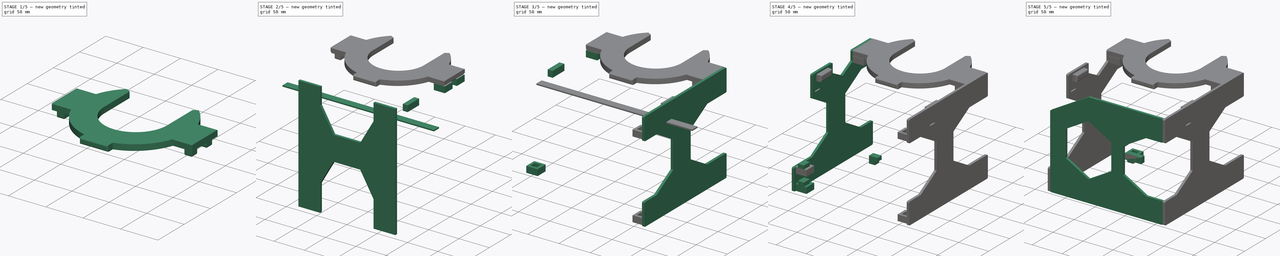
[diagram: build sequence overview — one tinted view per stage of 5, left to right]
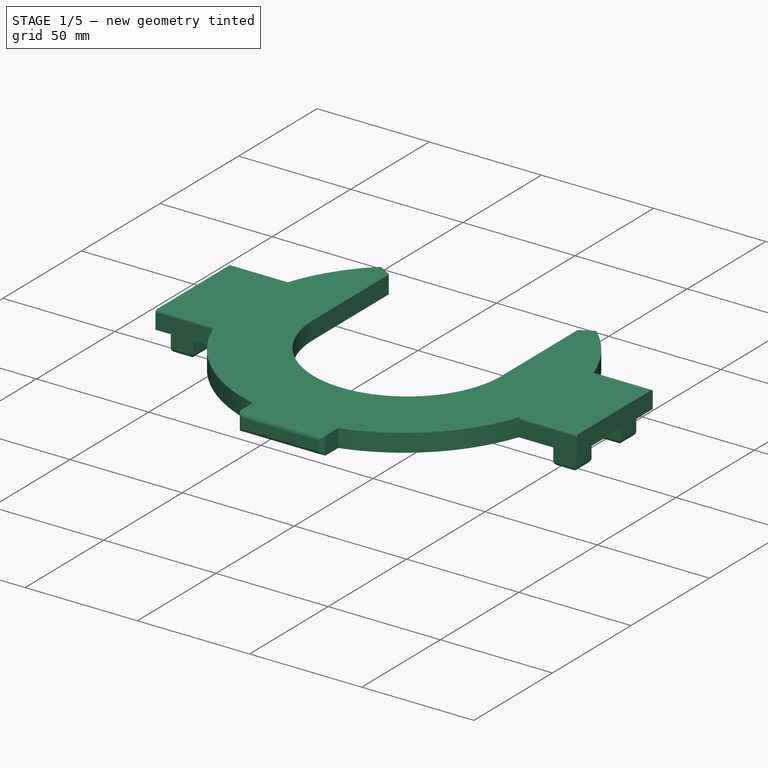
[diagram: stage 1 of 5 — iso view after this stage's code; geometry added in this stage tinted green]
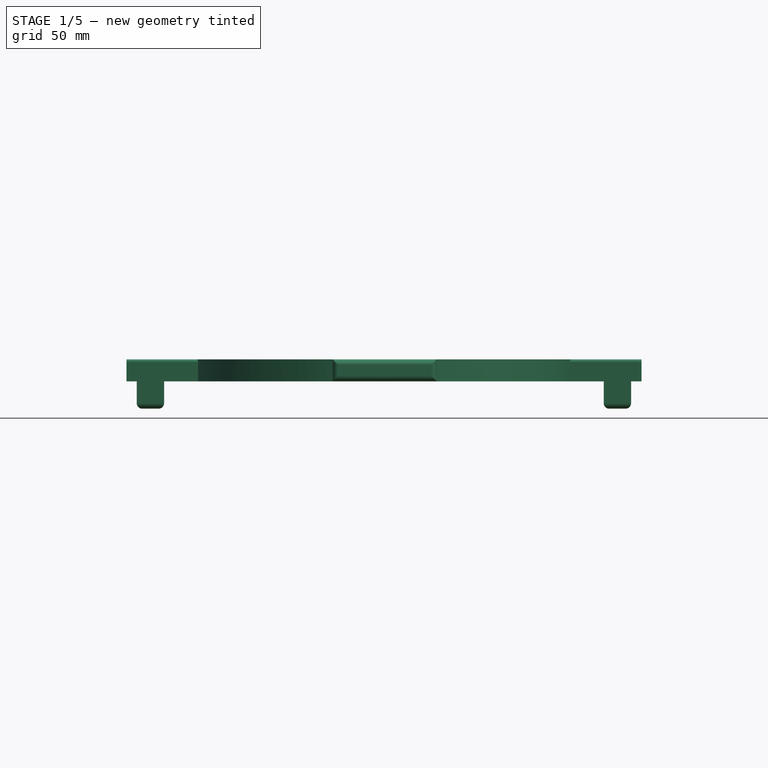
[diagram: stage 1 of 5 — front view after this stage's code; geometry added in this stage tinted green]
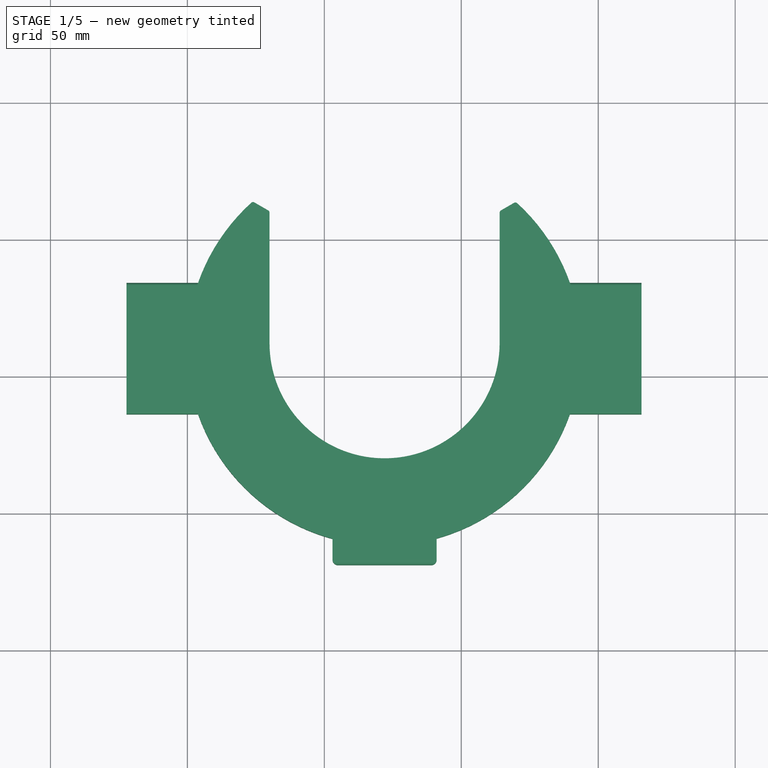
[diagram: stage 1 of 5 — top view after this stage's code; geometry added in this stage tinted green]
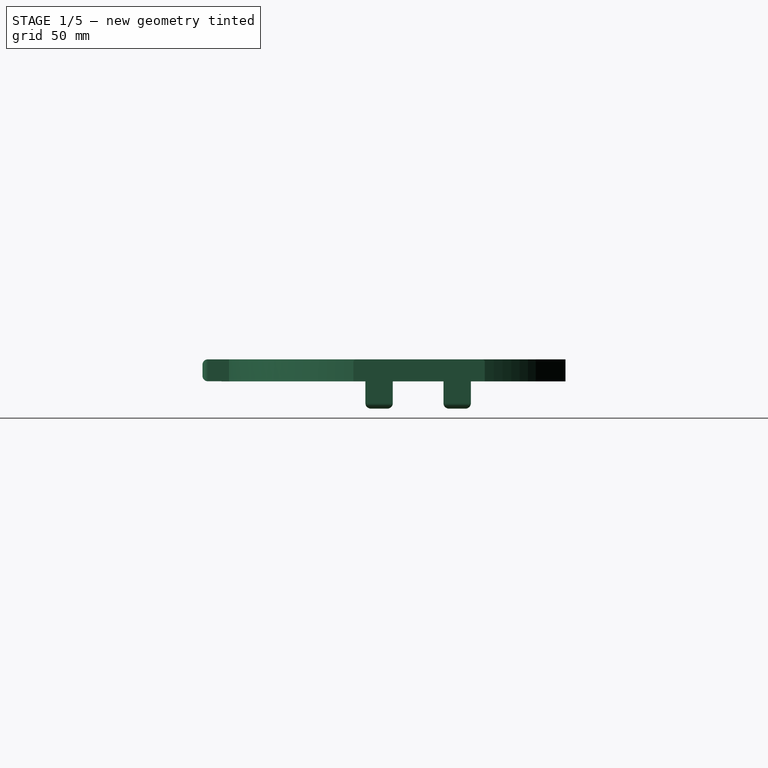
[diagram: stage 1 of 5 — right view after this stage's code; geometry added in this stage tinted green]
FCSTD DOCUMENT  (FreeCAD 0.21R33771 (Git))
Label: reactor-stand-1.0
License: All rights reserved
LicenseURL: https://en.wikipedia.org/wiki/All_rights_reserved
objects: Part::Feature×44, Part::Box×38, Part::Cut×12, Part::MultiFuse×10, Sketcher::SketchObject×8, PartDesign::Pad×8, Part::Fillet×8, App::Part×6, PartDesign::Body×5, Spreadsheet::Sheet×1, Part::Chamfer×1
note: 142 computed .brp shape members not serialized (recipe doc carries the construction recipe); baked Part::Feature solids carry a one-line shape summary decoded from their .brp

FEATURE [PartDesign::Body] Body002  label="k-base"
  Group = -> [Sketch002,Pad002]
  Origin = -> Origin002
  Placement = pos=(-126.19,90,0) rot=(0,0,1;0rad)
  Tip = -> Pad002
FEATURE [Sketcher::SketchObject] Sketch005
  FullyConstrained = true
  MapMode = 5
  Support = -> [XY_Plane004]
  sketch-geometry (1):
    g0: Circle CenterX=0 CenterY=0 CenterZ=0 NormalX=0 NormalY=0 NormalZ=1 AngleXU=0 Radius=42
  constraints (2):
    c: Coincident(g0,g-1)
    c: Diameter(g0) = 84
FEATURE [Sketcher::SketchObject] Sketch007
  FullyConstrained = true
  MapMode = 5
  Support = -> [XY_Plane004]
  expr: Constraints[19] = Spreadsheet.cSupportDepth / 2
  expr: Constraints[20] = 70
  sketch-geometry (7):
    g0: LineSegment StartX=0 StartY=24 StartZ=0 EndX=60.6218 EndY=59 EndZ=0
    g1: LineSegment StartX=60.6218 StartY=59 StartZ=0 EndX=60.6218 EndY=129 EndZ=0
    g2: LineSegment StartX=60.6218 StartY=129 StartZ=0 EndX=7.1e-15 EndY=164 EndZ=0
    g3: LineSegment StartX=7.1e-15 StartY=164 StartZ=0 EndX=-60.6218 EndY=129 EndZ=0
    g4: LineSegment StartX=-60.6218 StartY=129 StartZ=0 EndX=-60.6218 EndY=59 EndZ=0
    g5: LineSegment StartX=-60.6218 StartY=59 StartZ=0 EndX=0 EndY=24 EndZ=0
    g6: Circle CenterX=0 CenterY=94 CenterZ=0 NormalX=0 NormalY=0 NormalZ=1 AngleXU=0 Radius=70
  constraints (17):
    c: Coincident(g0,g1)
    c: Coincident(g1,g2)
    c: Coincident(g2,g3)
    c: Coincident(g3,g4)
    c: Coincident(g4,g5)
    c: Coincident(g5,g0)
    c: Equal(g0, g1-g5) x5
    c: PointOnObject(g0,g6)
    c: PointOnObject(g1,g6)
    c: PointOnObject(g2,g6)
    c: PointOnObject(g3,g6)
    c: PointOnObject(g4,g6)
    c: PointOnObject(g5,g6)
    c: PointOnObject(g6,g-2)
    c: PointOnObject(g5,g-2)
    c: DistanceY(g-1,g0) = 24
    c: Distance(g1) = 70
FEATURE [Sketcher::SketchObject] Sketch006
  FullyConstrained = true
  MapMode = 5
  Support = -> [XY_Plane004]
  expr: Constraints[8] = Spreadsheet.cInnerDiameter
  sketch-geometry (4):
    g0: LineSegment StartX=42 StartY=100 StartZ=0 EndX=-42 EndY=100 EndZ=0
    g1: LineSegment StartX=-42 StartY=100 StartZ=0 EndX=-42 EndY=0 EndZ=0
    g2: LineSegment StartX=-42 StartY=0 StartZ=0 EndX=42 EndY=0 EndZ=0
    g3: LineSegment StartX=42 StartY=0 StartZ=0 EndX=42 EndY=100 EndZ=0
  constraints (11):
    c: Coincident(g0,g1)
    c: Coincident(g1,g2)
    c: Coincident(g2,g3)
    c: Coincident(g3,g0)
    c: Horizontal(g0)
    c: Horizontal(g2)
    c: Vertical(g1)
    c: Vertical(g3)
    c: DistanceX(g2,g2) = 84
    c: Symmetric(g2,g1,g-1)
    c: DistanceY(g3,g3) = 100
FEATURE [PartDesign::Pad] Pad007
  Direction = (0,0,1)
  Length = 10
  Length2 = 10
  Profile = -> Sketch007
  ReferenceAxis = -> Sketch007 [N_Axis]
  Type = 0
FEATURE [PartDesign::Pad] Pad008
  BaseFeature = -> Pad007
  Direction = (0,0,1)
  Length = 10
  Length2 = 10
  Profile = -> Sketch006
  ReferenceAxis = -> Sketch006 [N_Axis]
  Type = 0
FEATURE [PartDesign::Pad] Pad009
  BaseFeature = -> Pad008
  Direction = (0,0,1)
  Length = 10
  Length2 = 10
  Profile = -> Sketch005
  ReferenceAxis = -> Sketch005 [N_Axis]
  Type = 0
FEATURE [PartDesign::Body] Body004  label="c-cut"
  Group = -> [Sketch005,Sketch006,Sketch007,Pad007,Pad008,Pad009]
  Origin = -> Origin004
  Placement = pos=(-28,162,71) rot=(0,0,1;0rad)
  Tip = -> Pad009
FEATURE [Sketcher::SketchObject] Sketch003
  FullyConstrained = true
  MapMode = 2
  Support = -> [XY_Plane003]
  expr: Constraints[1] = Spreadsheet.cDiameter
  sketch-geometry (1):
    g0: Circle CenterX=0 CenterY=0 CenterZ=0 NormalX=0 NormalY=0 NormalZ=1 AngleXU=0 Radius=72
  constraints (2):
    c: Coincident(g0,g-1)
    c: Diameter(g0) = 144
FEATURE [Sketcher::SketchObject] Sketch004
  FullyConstrained = true
  MapMode = 5
  Support = -> [XY_Plane003]
  expr: Constraints[8] = Spreadsheet.cSupportDepth
  expr: Constraints[9] = Spreadsheet.standWidth
  sketch-geometry (4):
    g0: LineSegment StartX=-94 StartY=-24 StartZ=0 EndX=94 EndY=-24 EndZ=0
    g1: LineSegment StartX=94 StartY=-24 StartZ=0 EndX=94 EndY=24 EndZ=0
    g2: LineSegment StartX=94 StartY=24 StartZ=0 EndX=-94 EndY=24 EndZ=0
    g3: LineSegment StartX=-94 StartY=24 StartZ=0 EndX=-94 EndY=-24 EndZ=0
  constraints (11):
    c: Coincident(g0,g1)
    c: Coincident(g1,g2)
    c: Coincident(g2,g3)
    c: Coincident(g3,g0)
    c: Horizontal(g0)
    c: Horizontal(g2)
    c: Vertical(g1)
    c: Vertical(g3)
    c: DistanceY(g3,g3) = 48
    c: DistanceX(g2,g2) = 188
    c: Symmetric(g2,g0,g-1)
FEATURE [PartDesign::Pad] Pad010
  Direction = (0,0,1)
  Length = 8
  Length2 = 10
  Profile = -> Sketch003
  ReferenceAxis = -> Sketch003 [N_Axis]
  Type = 0
  expr: Length = Spreadsheet.wallThickness * 2
FEATURE [PartDesign::Pad] Pad011
  BaseFeature = -> Pad010
  Direction = (0,0,1)
  Length = 8
  Length2 = 10
  Profile = -> Sketch004
  ReferenceAxis = -> Sketch004 [N_Axis]
  Type = 0
  expr: Length = Spreadsheet.wallThickness * 2
FEATURE [PartDesign::Body] Body003  label="c-base"
  Group = -> [Sketch003,Sketch004,Pad010,Pad011]
  Origin = -> Origin003
  Placement = pos=(-28.21,160.09,71.98) rot=(0,0,1;0rad)
  Tip = -> Pad011
FEATURE [Part::Cut] Cut  label="c-with-cut"
  Base = -> Body003
  Tool = -> Body004
FEATURE [Part::Box] Box028  label="c-tab-1"
  AttacherType = Attacher::AttachEngine3D
  Height = 10
  Length = 10
  Placement = pos=(52,140.5,62) rot=(0,0,1;0rad)
  Width = 10
  expr: Height = Spreadsheet.tabThickness
  expr: Length = Spreadsheet.tabThickness
  expr: Width = Spreadsheet.tabThickness
FEATURE [Part::Box] Box029  label="c-tab-002"
  AttacherType = Attacher::AttachEngine3D
  Height = 10
  Length = 10
  Placement = pos=(-118.5,140.5,62) rot=(0,0,1;0rad)
  Width = 10
  expr: Height = Spreadsheet.tabThickness
  expr: Length = Spreadsheet.tabThickness
  expr: Width = Spreadsheet.tabThickness
FEATURE [Part::Box] Box030  label="c-tab-003"
  AttacherType = Attacher::AttachEngine3D
  Height = 10
  Length = 10
  Placement = pos=(52,169,62) rot=(0,0,1;0rad)
  Width = 10
  expr: Height = Spreadsheet.tabThickness
  expr: Length = Spreadsheet.tabThickness
  expr: Width = Spreadsheet.tabThickness
FEATURE [Part::Box] Box031  label="c-tab-004"
  AttacherType = Attacher::AttachEngine3D
  Height = 10
  Length = 10
  Placement = pos=(-118.5,169,62) rot=(0,0,1;0rad)
  Width = 10
  expr: Height = Spreadsheet.tabThickness
  expr: Length = Spreadsheet.tabThickness
  expr: Width = Spreadsheet.tabThickness
FEATURE [Part::MultiFuse] Fusion008  label="c"
  Shapes = -> [Box028,Box029,Box030,Box031,Cut]
FEATURE [Part::Fillet] Fillet  label="c-smoothed"
  Base = -> Fusion008
  Edges = 24 edges: [Edge4 r=2,Edge7 r=2,Edge20 r=2,Edge21 r=2,Edge27 r=1,Edge32 r=1,Edge35 r=2,Edge37 r=2,Edge39 r=2,Edge40 r=2,Edge51 r=1,Edge60 r=1,Edge73 r=1,Edge76 r=1,Edge91 r=1,Edge94 r=1,Edge99 r=2,Edge101 r=2,Edge103 r=2,Edge104 r=2,Edge107 r=2,Edge109 r=2,Edge111 r=2,Edge112 r=2]
FEATURE [Part::Box] Box037  label="Pump Box Front Tab"
  AttacherType = Attacher::AttachEngine3D
  Height = 8
  Length = 38
  Placement = pos=(-47,81,72) rot=(0,0,1;0rad)
  Width = 10
FEATURE [Part::MultiFuse] Fusion009  label="c with tabs"
  Shapes = -> [Fillet,Box037]
FEATURE [Part::Fillet] Fillet011  label="c-smoothed with tabs"
  Base = -> Fusion009
  Edges = 4 edges r=2: [Edge6,Edge9,Edge28,Edge29]
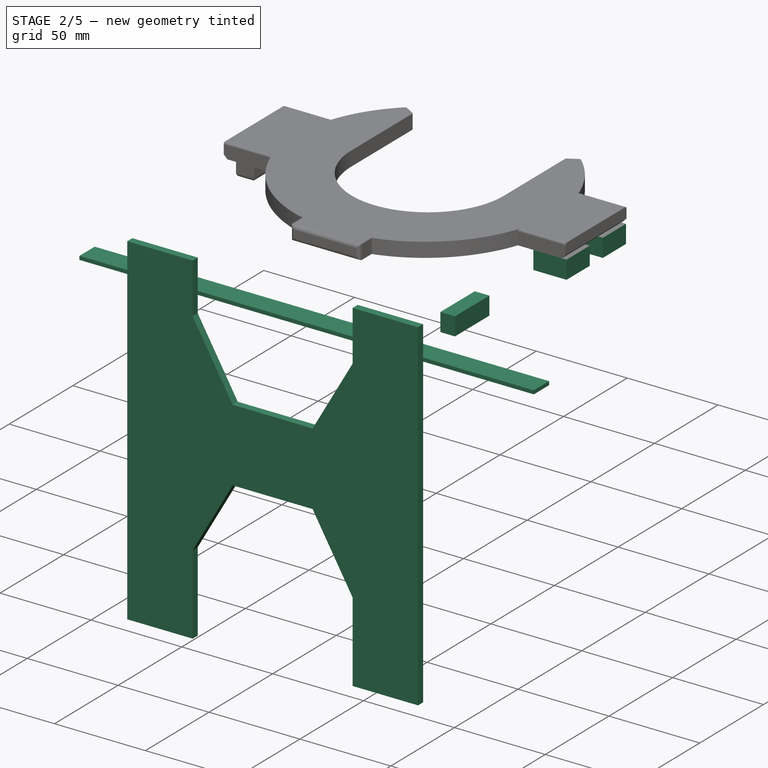
[diagram: stage 2 of 5 — iso view after this stage's code; geometry added in this stage tinted green]
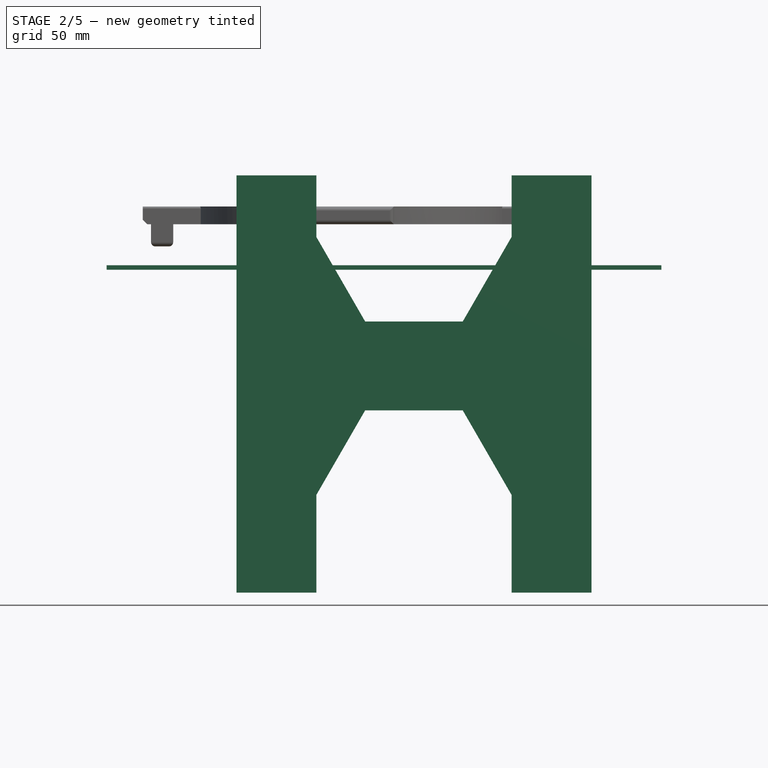
[diagram: stage 2 of 5 — front view after this stage's code; geometry added in this stage tinted green]
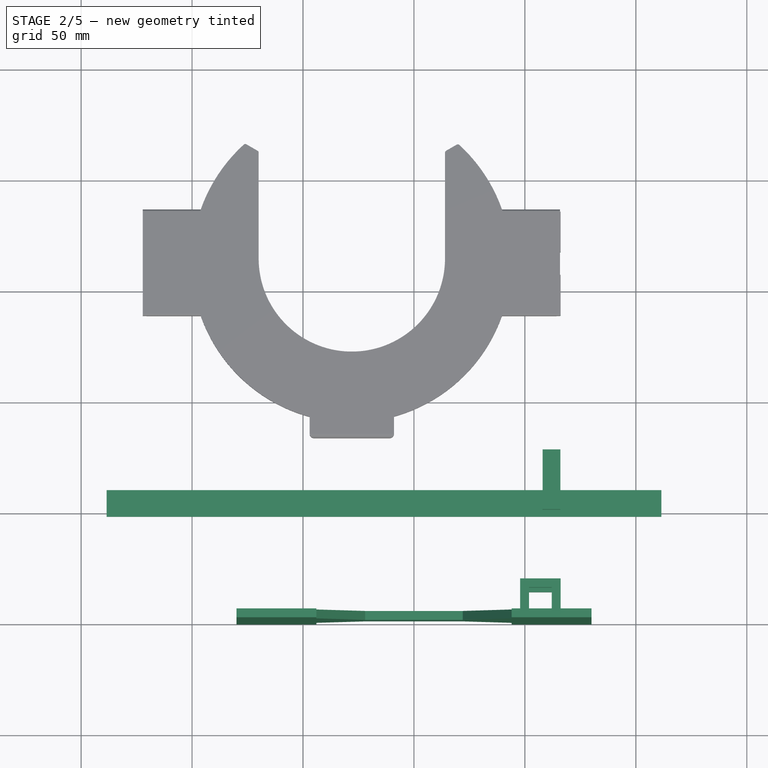
[diagram: stage 2 of 5 — top view after this stage's code; geometry added in this stage tinted green]
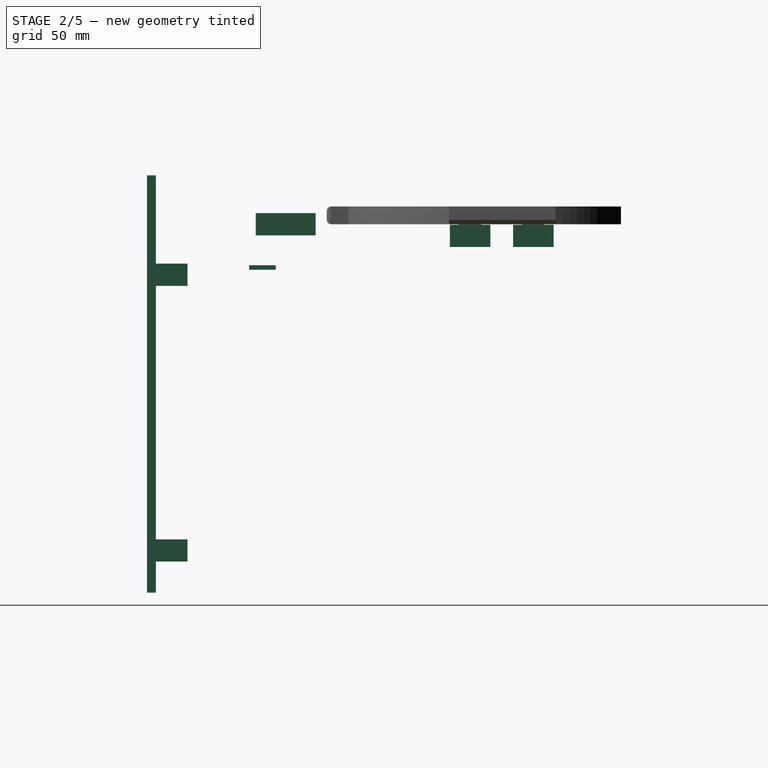
[diagram: stage 2 of 5 — right view after this stage's code; geometry added in this stage tinted green]
FEATURE [Spreadsheet::Sheet] Spreadsheet
  cells = C4='standHeight; D4(standHeight)==160 mm; C5='standWidth; D5(standWidth)==188 mm; C6='standDepth; D6(standDepth)==188 mm; C8='wallthickness; D8(wallThickness)==4 mm; C10='tabThickness; D10(tabThickness)==10 mm; C11='tabBufferSize; D11(tabBufferSize)==0.25 mm; C12='tabHeight; D12(tabHeight)==6 mm; C13='tabSupportHeight; D13(tabSupportHeight)==6 mm; C14='pumpBoxSupportDepth; D14(pumpBoxSupportDepth)==27 mm; C15='pumpBoxSupportWidth; D15(pumpBoxSupportWidth)==8 mm; C16='pumpBoxSupportHeight; D16(pumpBoxSupportHeight)==10 mm; C18='slotThickness; D18(slotThickness)==tabThickness + tabBufferSize + wallThickness * 2; C21='cDiameter; D21(cDiameter)==144 mm; C22='cSupportDepth; D22(cSupportDepth)==48 mm; C23='cInnerDiameter; D23(cInnerDiameter)==84 mm; C25='pumpsBoxSetback
FEATURE [Sketcher::SketchObject] Sketch
  FullyConstrained = true
  Placement = pos=(0,0,0) rot=(0.57735,0.57735,0.57735;4.18879rad)
  Support = -> [YZ_Plane]
  expr: Constraints[48] = Spreadsheet.standWidth
  expr: Constraints[50] = Spreadsheet.standHeight
  sketch-geometry (18):
    g0: LineSegment StartX=94 StartY=80 StartZ=0 EndX=94 EndY=44 EndZ=0
    g1: LineSegment StartX=94 StartY=-80 StartZ=0 EndX=-94 EndY=-80 EndZ=0
    g2: LineSegment StartX=94 StartY=-44 StartZ=0 EndX=66.29 EndY=-44 EndZ=0
    g3: LineSegment StartX=-50 StartY=-44 StartZ=0 EndX=-11.8949 EndY=-22 EndZ=0
    g4: LineSegment StartX=-11.8949 StartY=-22 StartZ=0 EndX=-11.895 EndY=22 EndZ=0
    g5: LineSegment StartX=-11.895 StartY=22 StartZ=0 EndX=-50 EndY=44 EndZ=0
    g6: Circle CenterX=-50.0001 CenterY=-1e-16 CenterZ=0 NormalX=0 NormalY=0 NormalZ=1 AngleXU=0 Radius=44
    g7: LineSegment StartX=66.29 StartY=44 StartZ=0 EndX=28.1849 EndY=22 EndZ=0
    g8: LineSegment StartX=28.1849 StartY=22 StartZ=0 EndX=28.1849 EndY=-22 EndZ=0
    g9: LineSegment StartX=28.1849 StartY=-22 StartZ=0 EndX=66.29 EndY=-44 EndZ=0
    g10: Circle CenterX=66.29 CenterY=0 CenterZ=0 NormalX=0 NormalY=0 NormalZ=1 AngleXU=0 Radius=44
    g11: LineSegment StartX=-50 StartY=-44 StartZ=0 EndX=-94 EndY=-44 EndZ=0
    g12: LineSegment StartX=66.29 StartY=44 StartZ=0 EndX=94 EndY=44 EndZ=0
    g13: LineSegment StartX=-94 StartY=-44 StartZ=0 EndX=-94 EndY=-80 EndZ=0
    g14: LineSegment StartX=94 StartY=-44 StartZ=0 EndX=94 EndY=-80 EndZ=0
    g15: LineSegment StartX=94 StartY=80 StartZ=0 EndX=-94 EndY=80 EndZ=0
    g16: LineSegment StartX=-94 StartY=80 StartZ=0 EndX=-94 EndY=44 EndZ=0
    g17: LineSegment StartX=-94 StartY=44 StartZ=0 EndX=-50 EndY=44 EndZ=0
  constraints (53):
    c: Vertical(g0)
    c: Horizontal(g2)
    c: PointOnObject(g2,g0)
    c: Coincident(g3,g4)
    c: Coincident(g4,g5)
    c: Equal(g3,g4)
    c: Equal(g3,g5)
    c: PointOnObject(g3,g6)
    c: PointOnObject(g4,g6)
    c: PointOnObject(g5,g6)
    c: PointOnObject(g3,g6)
    c: Coincident(g7,g8)
    c: Coincident(g8,g9)
    c: PointOnObject(g7,g10)
    c: PointOnObject(g7,g10)
    c: PointOnObject(g8,g10)
    c: PointOnObject(g9,g10)
    c: PointOnObject(g10,g-1)
    c: DistanceX(g7,g9) = 0
    c: Angle(g2,g9,g9) = 2.61799
    c: Angle(g8,g9,g8) = 1.0472
    c: DistanceX(g9,g2) = 27.71
    c: DistanceX(g11,g3) = 44
    c: Symmetric(g1,g1,g-2)
    c: Coincident(g2,g9)
    c: Coincident(g12,g7)
    c: Coincident(g12,g0)
    c: Horizontal(g12)
    c: DistanceY(g0,g0) = 36
    c: DistanceY(g4,g7) = 0
    c: DistanceX(g1,g1) = 188
    c: Coincident(g11,g3)
    c: DistanceY(g1,g11) = 36
    c: Horizontal(g11)
    c: Coincident(g13,g11)
    c: Coincident(g13,g1)
    c: Vertical(g13)
    c: Coincident(g14,g2)
    c: Coincident(g14,g1)
    c: Vertical(g14)
    c: Coincident(g15,g0)
    c: Horizontal(g15)
    c: Coincident(g16,g15)
    c: Vertical(g16)
    c: Coincident(g17,g16)
    c: Coincident(g17,g5)
    c: Horizontal(g17)
    c: Tangent(g17,g6)
    c: DistanceX(g15,g0) = 188
    c: Equal(g7,g8)
    c: DistanceY(g1,g0) = 160
    c: DistanceY(g16,g0) = 0
    c: DistanceY(g11,g2) = 0
FEATURE [PartDesign::Pad] Pad
  Direction = (0,1,0)
  Length = 4
  Length2 = 10
  Placement = pos=(0,0,0) rot=(0.57735,0.57735,0.57735;2.0944rad)
  Profile = -> Sketch
  ReferenceAxis = -> Sketch [N_Axis]
  Type = 0
  expr: Length = Spreadsheet.wallThickness
FEATURE [Part::Box] Box004  label="Ur-Slot-Outside001"
  AttacherType = Attacher::AttachEngine3D
  Height = 10
  Length = 18.25
  Width = 18.25
  expr: Height = Spreadsheet.tabThickness
  expr: Length = Spreadsheet.slotThickness
  expr: Width = Spreadsheet.slotThickness
FEATURE [Part::Box] Box005  label="Ur-Slot-Slot001"
  AttacherType = Attacher::AttachEngine3D
  Height = 10
  Length = 10.25
  Placement = pos=(4,4,0) rot=(0,0,1;0rad)
  Width = 10.25
  expr: Length = Spreadsheet.tabThickness + Spreadsheet.tabBufferSize
  expr: Width = Spreadsheet.tabThickness + Spreadsheet.tabBufferSize
FEATURE [Part::Cut] Cut002  label="H-slot-1"
  Base = -> Box004
  Placement = pos=(47.87,0,-80) rot=(0,0,1;0rad)
  Tool = -> Box005
FEATURE [Part::Box] Box006  label="Ur-Slot-Outside002"
  AttacherType = Attacher::AttachEngine3D
  Height = 10
  Length = 18.25
  Width = 18.25
  expr: Height = Spreadsheet.tabThickness
  expr: Length = Spreadsheet.slotThickness
  expr: Width = Spreadsheet.slotThickness
FEATURE [Part::Box] Box007  label="Ur-Slot-Slot002"
  AttacherType = Attacher::AttachEngine3D
  Height = 10
  Length = 10.25
  Placement = pos=(4,4,0) rot=(0,0,1;0rad)
  Width = 10.25
  expr: Length = Spreadsheet.tabThickness + Spreadsheet.tabBufferSize
  expr: Width = Spreadsheet.tabThickness + Spreadsheet.tabBufferSize
FEATURE [Part::Cut] Cut003  label="H-slot-002"
  Base = -> Box006
  Placement = pos=(47.87,0,44.25) rot=(0,0,1;0rad)
  Tool = -> Box007
FEATURE [Part::Box] Box008  label="Ur-Slot-Outside003"
  AttacherType = Attacher::AttachEngine3D
  Height = 10
  Length = 18.25
  Width = 18.25
  expr: Height = Spreadsheet.tabThickness
  expr: Length = Spreadsheet.slotThickness
  expr: Width = Spreadsheet.slotThickness
FEATURE [Part::Box] Box009  label="Ur-Slot-Slot003"
  AttacherType = Attacher::AttachEngine3D
  Height = 10
  Length = 10.25
  Placement = pos=(4,4,0) rot=(0,0,1;0rad)
  Width = 10.25
  expr: Length = Spreadsheet.tabThickness + Spreadsheet.tabBufferSize
  expr: Width = Spreadsheet.tabThickness + Spreadsheet.tabBufferSize
FEATURE [Part::Cut] Cut004  label="H-slot-003"
  Base = -> Box008
  Placement = pos=(47.87,165,61.75) rot=(0,0,1;0rad)
  Tool = -> Box009
FEATURE [Part::Box] Box010  label="Ur-Slot-Outside004"
  AttacherType = Attacher::AttachEngine3D
  Height = 10
  Length = 18.25
  Width = 18.25
  expr: Height = Spreadsheet.tabThickness
  expr: Length = Spreadsheet.slotThickness
  expr: Width = Spreadsheet.slotThickness
FEATURE [Part::Box] Box011  label="Ur-Slot-Slot004"
  AttacherType = Attacher::AttachEngine3D
  Height = 10
  Length = 10.25
  Placement = pos=(4,4,0) rot=(0,0,1;0rad)
  Width = 10.25
  expr: Length = Spreadsheet.tabThickness + Spreadsheet.tabBufferSize
  expr: Width = Spreadsheet.tabThickness + Spreadsheet.tabBufferSize
FEATURE [Part::Cut] Cut005  label="H-slot-004"
  Base = -> Box010
  Placement = pos=(47.87,136.5,61.75) rot=(0,0,1;0rad)
  Tool = -> Box011
FEATURE [Part::Box] Box034  label="H-PumpBoxSupport001"
  AttacherType = Attacher::AttachEngine3D
  Height = 10
  Length = 27
  Placement = pos=(66,49,67) rot=(0,0,1;1.5708rad)
  Width = 8
  expr: Height = Spreadsheet.pumpBoxSupportHeight
  expr: Length = Spreadsheet.pumpBoxSupportDepth
  expr: Width = Spreadsheet.pumpBoxSupportWidth
FEATURE [Part::Box] Box035  label="strap slot cut"
  AttacherType = Attacher::AttachEngine3D
  Height = 2
  Length = 12
  Placement = pos=(-138.5,58,51.5) rot=(0,0,-1;1.5708rad)
  Width = 250
FEATURE [Part::Chamfer] Chamfer  label="c-chamfered-touching-faces"
  Base = -> Fillet011
  Edges = 2 edges r=2: [Edge103,Edge117]
FEATURE [Part::Feature] Part__Feature  label="Pumps Box with Cuts"
  Placement = pos=(-28,86,146) rot=(1,0,0;1.5708rad)
  shape: bbox 188 x 64 x 188 mm, 137 faces (baked)
FEATURE [Part::Feature] Part__Feature001  label="Body"
  Placement = pos=(-28,22,146) rot=(-1,0,0;1.5708rad)
  shape: bbox 188 x 6 x 188 mm, 62 faces (baked)
FEATURE [Part::Feature] Part__Feature002  label="6627T64_Stepper Motor"
  shape: bbox 42.16 x 42.16 x 10.52 mm, 20 faces (baked)
FEATURE [Part::Feature] Part__Feature003  label="6627T64_Stepper Motor001"
  shape: bbox 5 x 5 x 49.91 mm, 8 faces (baked)
FEATURE [Part::Feature] Part__Feature004  label="6627T64_Stepper Motor002"
  shape: bbox 45.91 x 45.91 x 9.602 mm, 120 faces (baked)
FEATURE [Part::Feature] Part__Feature005  label="6627T64_Stepper Motor003"
  shape: bbox 5.499 x 5.499 x 2.032 mm, 22 faces (baked)
FEATURE [Part::Feature] Part__Feature006  label="6627T64_Stepper Motor004"
  shape: bbox 7.62 x 2.365 x 6.985 mm, 16 faces (baked)
FEATURE [Part::Feature] Part__Feature011  label="6627T64_Stepper Motor009"
  shape: bbox 5.499 x 5.499 x 2.032 mm, 22 faces (baked)
FEATURE [Part::Feature] Part__Feature012  label="6627T64_Stepper Motor010"
  shape: bbox 5.499 x 5.499 x 2.032 mm, 22 faces (baked)
FEATURE [Part::Feature] Part__Feature013  label="6627T64_Stepper Motor011"
  shape: bbox 5.499 x 5.499 x 2.032 mm, 22 faces (baked)
FEATURE [Part::Feature] Part__Feature014  label="6627T64_Stepper Motor012"
  shape: bbox 45.59 x 45.59 x 7.823 mm, 81 faces (baked)
FEATURE [Part::Feature] Part__Feature015  label="6627T64_Stepper Motor013"
  shape: bbox 7.286 x 7.286 x 3.683 mm, 8 faces (baked)
FEATURE [Part::Feature] Part__Feature016  label="6627T64_Stepper Motor014"
  shape: bbox 18.33 x 18.33 x 3.81 mm, 16 faces (baked)
FEATURE [App::Part] _627T64_Stepper_Motor  label="6627T64_Stepper Motor015"
  Group = -> [Part__Feature002,Part__Feature003,Part__Feature004,Part__Feature005,Part__Feature006,Part__Feature011,Part__Feature012,Part__Feature013,Part__Feature014,Part__Feature015,Part__Feature016]
  Origin = -> Origin005
  Placement = pos=(34.6482,90,203.243) rot=(0.862856,-0.357407,-0.357407;4.56541rad)
FEATURE [Part::Feature] Part__Feature017  label="6627T64_Stepper Motor016"
  shape: bbox 42.16 x 42.16 x 10.52 mm, 20 faces (baked)
FEATURE [Part::Feature] Part__Feature018  label="6627T64_Stepper Motor017"
  shape: bbox 5 x 5 x 49.91 mm, 8 faces (baked)
FEATURE [Part::Feature] Part__Feature019  label="6627T64_Stepper Motor018"
  shape: bbox 45.91 x 45.91 x 9.602 mm, 120 faces (baked)
FEATURE [Part::Feature] Part__Feature020  label="6627T64_Stepper Motor019"
  shape: bbox 5.499 x 5.499 x 2.032 mm, 22 faces (baked)
FEATURE [Part::Feature] Part__Feature021  label="6627T64_Stepper Motor020"
  shape: bbox 7.62 x 2.365 x 6.985 mm, 16 faces (baked)
FEATURE [Part::Feature] Part__Feature022  label="6627T64_Stepper Motor021"
  shape: bbox 5.499 x 5.499 x 2.032 mm, 22 faces (baked)
FEATURE [Part::Feature] Part__Feature023  label="6627T64_Stepper Motor022"
  shape: bbox 5.499 x 5.499 x 2.032 mm, 22 faces (baked)
FEATURE [Part::Feature] Part__Feature024  label="6627T64_Stepper Motor023"
  shape: bbox 5.499 x 5.499 x 2.032 mm, 22 faces (baked)
FEATURE [Part::Feature] Part__Feature025  label="6627T64_Stepper Motor024"
  shape: bbox 45.59 x 45.59 x 7.823 mm, 81 faces (baked)
FEATURE [Part::Feature] Part__Feature026  label="6627T64_Stepper Motor025"
  shape: bbox 7.286 x 7.286 x 3.683 mm, 8 faces (baked)
FEATURE [Part::Feature] Part__Feature027  label="6627T64_Stepper Motor026"
  shape: bbox 18.33 x 18.33 x 3.81 mm, 16 faces (baked)
FEATURE [App::Part] _627T64_Stepper_Motor001  label="6627T64_Stepper Motor027"
  Group = -> [Part__Feature017,Part__Feature018,Part__Feature019,Part__Feature020,Part__Feature021,Part__Feature022,Part__Feature023,Part__Feature024,Part__Feature025,Part__Feature026,Part__Feature027]
  Origin = -> Origin006
  Placement = pos=(-27.9307,90,203.596) rot=(0.862856,-0.357407,-0.357407;4.56541rad)
FEATURE [Part::Feature] Part__Feature028  label="6627T64_Stepper Motor028"
  shape: bbox 42.16 x 42.16 x 10.52 mm, 20 faces (baked)
FEATURE [Part::Feature] Part__Feature029  label="6627T64_Stepper Motor029"
  shape: bbox 5 x 5 x 49.91 mm, 8 faces (baked)
FEATURE [Part::Feature] Part__Feature030  label="6627T64_Stepper Motor030"
  shape: bbox 45.91 x 45.91 x 9.602 mm, 120 faces (baked)
FEATURE [Part::Feature] Part__Feature031  label="6627T64_Stepper Motor031"
  shape: bbox 5.499 x 5.499 x 2.032 mm, 22 faces (baked)
FEATURE [Part::Feature] Part__Feature032  label="6627T64_Stepper Motor032"
  shape: bbox 7.62 x 2.365 x 6.985 mm, 16 faces (baked)
FEATURE [Part::Feature] Part__Feature033  label="6627T64_Stepper Motor033"
  shape: bbox 5.499 x 5.499 x 2.032 mm, 22 faces (baked)
FEATURE [Part::Feature] Part__Feature034  label="6627T64_Stepper Motor034"
  shape: bbox 5.499 x 5.499 x 2.032 mm, 22 faces (baked)
FEATURE [Part::Feature] Part__Feature035  label="6627T64_Stepper Motor035"
  shape: bbox 5.499 x 5.499 x 2.032 mm, 22 faces (baked)
FEATURE [Part::Feature] Part__Feature036  label="6627T64_Stepper Motor036"
  shape: bbox 45.59 x 45.59 x 7.823 mm, 81 faces (baked)
FEATURE [Part::Feature] Part__Feature037  label="6627T64_Stepper Motor037"
  shape: bbox 7.286 x 7.286 x 3.683 mm, 8 faces (baked)
FEATURE [Part::Feature] Part__Feature038  label="6627T64_Stepper Motor038"
  shape: bbox 18.33 x 18.33 x 3.81 mm, 16 faces (baked)
FEATURE [App::Part] _627T64_Stepper_Motor002  label="6627T64_Stepper Motor039"
  Group = -> [Part__Feature028,Part__Feature029,Part__Feature030,Part__Feature031,Part__Feature032,Part__Feature033,Part__Feature034,Part__Feature035,Part__Feature036,Part__Feature037,Part__Feature038]
  Origin = -> Origin007
  Placement = pos=(-90.6864,90,203.419) rot=(0.862856,-0.357407,-0.357407;4.56541rad)
FEATURE [Part::Feature] Part__Feature039  label="7510A611_Plastic Syringe"
  shape: bbox 38.1 x 28.45 x 139.7 mm, 320 faces (baked)
FEATURE [Part::Feature] Part__Feature040  label="7510A611_Plastic Syringe001"
  shape: bbox 25.4 x 25.4 x 110 mm, 20 faces (baked)
FEATURE [Part::Feature] Part__Feature041  label="7510A611_Plastic Syringe002"
  shape: bbox 23.11 x 23.11 x 9.081 mm, 13 faces (baked)
FEATURE [App::Part] _510A611_Plastic_Syringe  label="7510A611_Plastic Syringe003"
  Group = -> [Part__Feature039,Part__Feature040,Part__Feature041]
  Origin = -> Origin008
  Placement = pos=(82.1344,100.5,318.261) rot=(0.600821,-0.783005,-0.160989;2.72798rad)
FEATURE [Part::Feature] Part__Feature042  label="7510A611_Plastic Syringe004"
  shape: bbox 38.1 x 28.45 x 139.7 mm, 320 faces (baked)
FEATURE [Part::Feature] Part__Feature043  label="7510A611_Plastic Syringe005"
  shape: bbox 25.4 x 25.4 x 110 mm, 20 faces (baked)
FEATURE [Part::Feature] Part__Feature044  label="7510A611_Plastic Syringe006"
  shape: bbox 23.11 x 23.11 x 9.081 mm, 13 faces (baked)
FEATURE [App::Part] _510A611_Plastic_Syringe001  label="7510A611_Plastic Syringe007"
  Group = -> [Part__Feature042,Part__Feature043,Part__Feature044]
  Origin = -> Origin009
  Placement = pos=(19.4696,100.5,319.222) rot=(0.600821,-0.783005,-0.160989;2.72798rad)
FEATURE [Part::Feature] Part__Feature045  label="7510A611_Plastic Syringe008"
  shape: bbox 38.1 x 28.45 x 139.7 mm, 320 faces (baked)
FEATURE [Part::Feature] Part__Feature046  label="7510A611_Plastic Syringe009"
  shape: bbox 25.4 x 25.4 x 110 mm, 20 faces (baked)
FEATURE [Part::Feature] Part__Feature047  label="7510A611_Plastic Syringe010"
  shape: bbox 23.11 x 23.11 x 9.081 mm, 13 faces (baked)
FEATURE [App::Part] _510A611_Plastic_Syringe002  label="7510A611_Plastic Syringe011"
  Group = -> [Part__Feature045,Part__Feature046,Part__Feature047]
  Origin = -> Origin010
  Placement = pos=(-43.3963,100.5,316.835) rot=(-0.600821,0.783005,0.160989;3.5552rad)
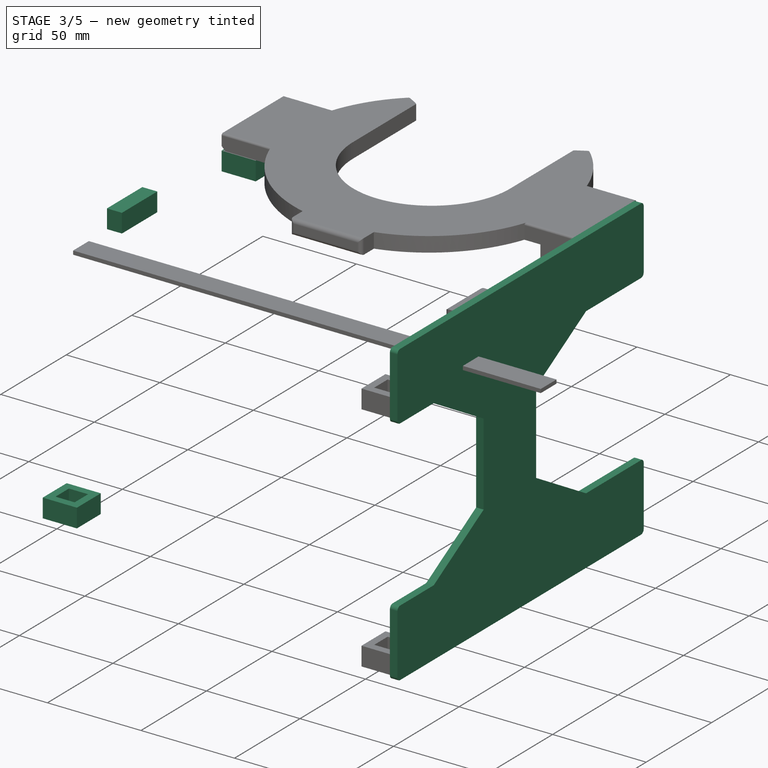
[diagram: stage 3 of 5 — iso view after this stage's code; geometry added in this stage tinted green]
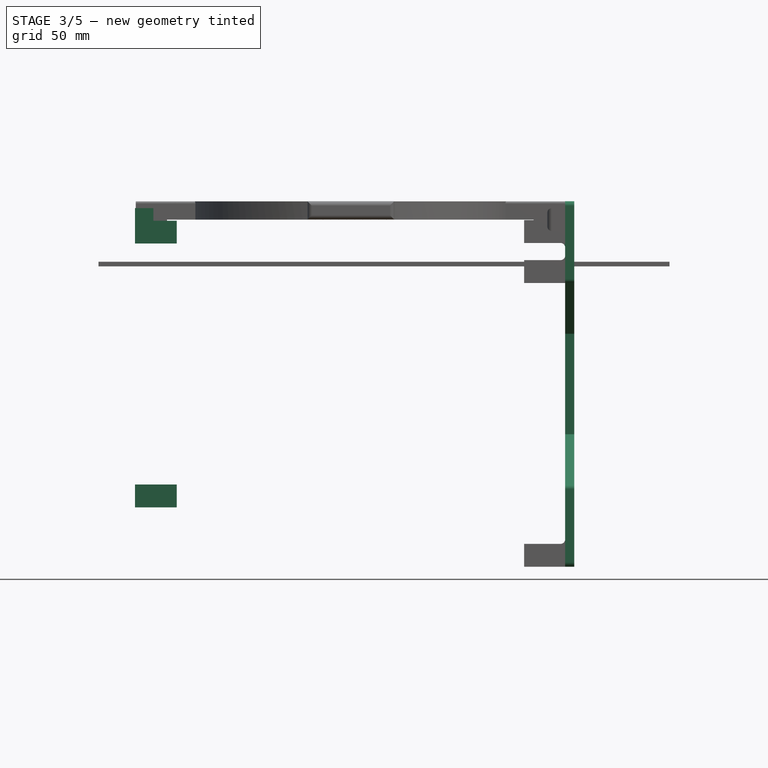
[diagram: stage 3 of 5 — front view after this stage's code; geometry added in this stage tinted green]
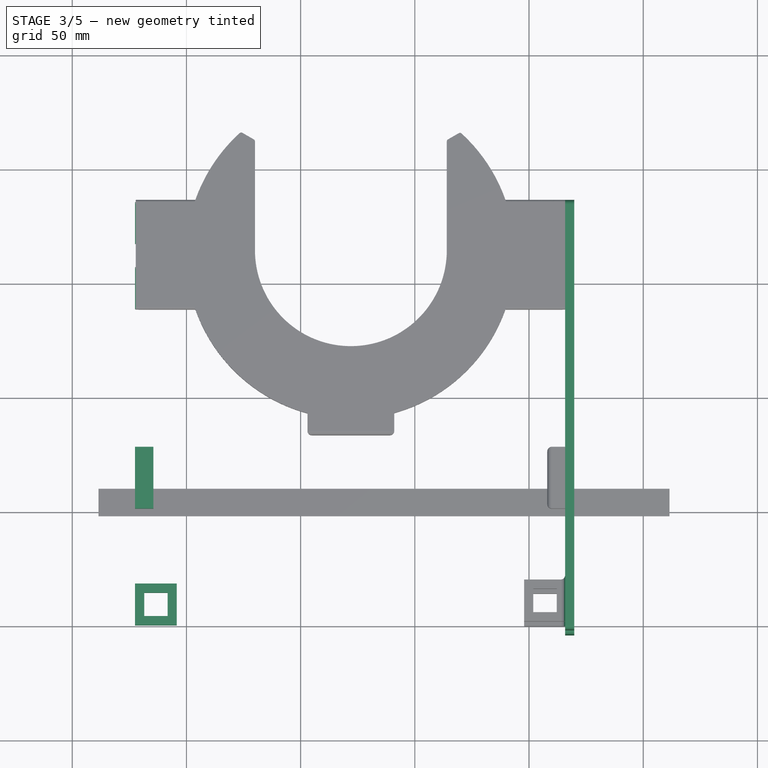
[diagram: stage 3 of 5 — top view after this stage's code; geometry added in this stage tinted green]
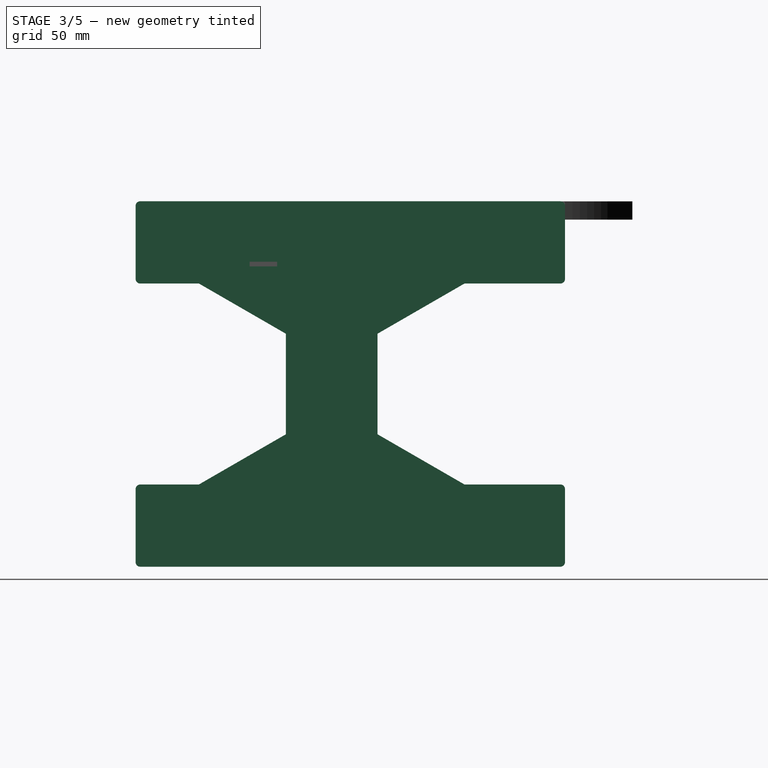
[diagram: stage 3 of 5 — right view after this stage's code; geometry added in this stage tinted green]
FEATURE [Part::Box] Box014  label="Ur-Slot-Outside006"
  AttacherType = Attacher::AttachEngine3D
  Height = 10
  Length = 18.25
  Width = 18.25
  expr: Height = Spreadsheet.tabThickness
  expr: Length = Spreadsheet.slotThickness
  expr: Width = Spreadsheet.slotThickness
FEATURE [Part::Box] Box015  label="Ur-Slot-Slot006"
  AttacherType = Attacher::AttachEngine3D
  Height = 10
  Length = 10.25
  Placement = pos=(4,4,0) rot=(0,0,1;0rad)
  Width = 10.25
  expr: Length = Spreadsheet.tabThickness + Spreadsheet.tabBufferSize
  expr: Width = Spreadsheet.tabThickness + Spreadsheet.tabBufferSize
FEATURE [Part::Cut] Cut007  label="k-slot-2"
  Base = -> Box014
  Placement = pos=(-122.5,0,-54) rot=(0,0,1;0rad)
  Tool = -> Box015
FEATURE [Part::Box] Box016  label="Ur-Slot-Outside007"
  AttacherType = Attacher::AttachEngine3D
  Height = 10
  Length = 18.25
  Width = 18.25
  expr: Height = Spreadsheet.tabThickness
  expr: Length = Spreadsheet.slotThickness
  expr: Width = Spreadsheet.slotThickness
FEATURE [Part::Box] Box017  label="Ur-Slot-Slot007"
  AttacherType = Attacher::AttachEngine3D
  Height = 10
  Length = 10.25
  Placement = pos=(4,4,0) rot=(0,0,1;0rad)
  Width = 10.25
  expr: Length = Spreadsheet.tabThickness + Spreadsheet.tabBufferSize
  expr: Width = Spreadsheet.tabThickness + Spreadsheet.tabBufferSize
FEATURE [Part::Cut] Cut008  label="k-slot-3"
  Base = -> Box016
  Placement = pos=(-122.5,136.5,61.5) rot=(0,0,1;0rad)
  Tool = -> Box017
FEATURE [Part::Box] Box018  label="Ur-Slot-Outside008"
  AttacherType = Attacher::AttachEngine3D
  Height = 10
  Length = 18.25
  Width = 18.25
  expr: Height = Spreadsheet.tabThickness
  expr: Length = Spreadsheet.slotThickness
  expr: Width = Spreadsheet.slotThickness
FEATURE [Part::Box] Box019  label="Ur-Slot-Slot008"
  AttacherType = Attacher::AttachEngine3D
  Height = 10
  Length = 10.25
  Placement = pos=(4,4,0) rot=(0,0,1;0rad)
  Width = 10.25
  expr: Length = Spreadsheet.tabThickness + Spreadsheet.tabBufferSize
  expr: Width = Spreadsheet.tabThickness + Spreadsheet.tabBufferSize
FEATURE [Part::Cut] Cut009  label="k-slot-4"
  Base = -> Box018
  Placement = pos=(-122.5,165,61.5) rot=(0,0,1;0rad)
  Tool = -> Box019
FEATURE [Part::Box] Box033  label="k-PumpBoxSupport"
  AttacherType = Attacher::AttachEngine3D
  Height = 10
  Length = 27
  Placement = pos=(-114.5,49,67) rot=(0,0,1;1.5708rad)
  Width = 8
  expr: Height = Spreadsheet.pumpBoxSupportHeight
  expr: Length = Spreadsheet.pumpBoxSupportDepth
  expr: Width = Spreadsheet.pumpBoxSupportWidth
FEATURE [Part::MultiFuse] Fusion001  label="H"
  Shapes = -> [Body,Cut002,Cut003,Cut004,Cut005,Box034]
FEATURE [Part::Fillet] Fillet010  label="H-smoothed"
  Base = -> Fusion001
  Edges = 12 edges r=2: [Edge1,Edge2,Edge10,Edge61,Edge65,Edge66,Edge67,Edge68,Edge117,Edge120,Edge122,Edge123]
FEATURE [Part::Box] Box036  label="strap slot cut001"
  AttacherType = Attacher::AttachEngine3D
  Height = 2
  Length = 12
  Placement = pos=(-138.5,58,51.5) rot=(0,0,-1;1.5708rad)
  Width = 250
FEATURE [Part::Cut] Cut010  label="H with strap cut"
  Base = -> Fillet010
  Tool = -> Box035
FEATURE [Part::Fillet] Fillet014  label="H-reinforced"
  Base = -> Cut010
  Edges = 8 edges r=2: [Edge11,Edge13,Edge32,Edge34,Edge36,Edge37,Edge49,Edge51]
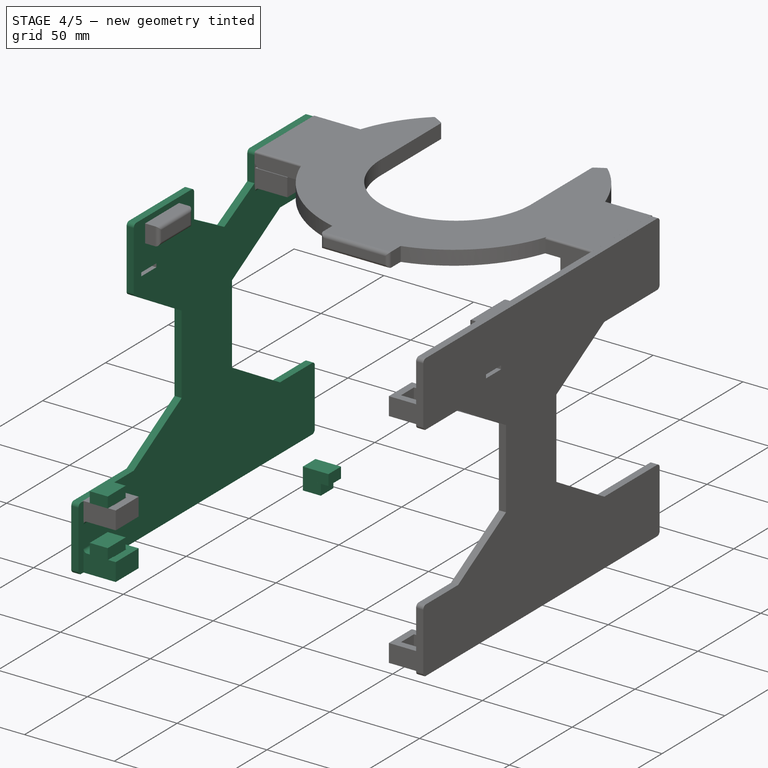
[diagram: stage 4 of 5 — iso view after this stage's code; geometry added in this stage tinted green]
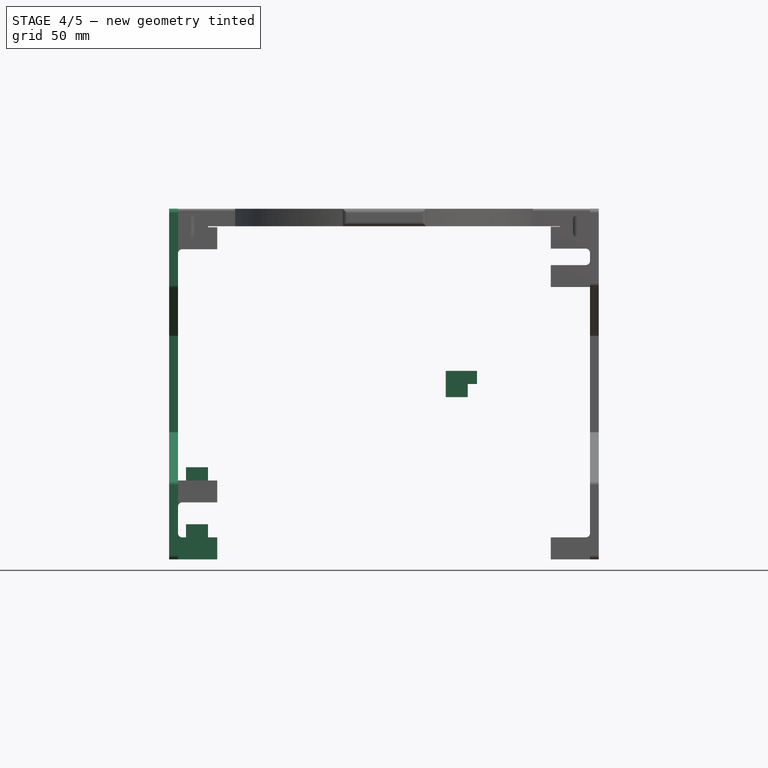
[diagram: stage 4 of 5 — front view after this stage's code; geometry added in this stage tinted green]
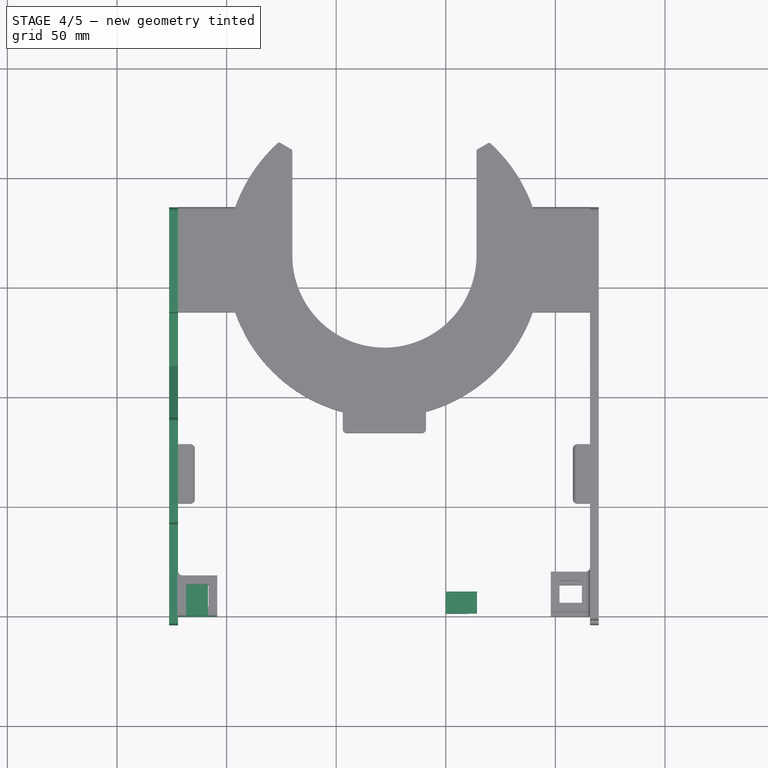
[diagram: stage 4 of 5 — top view after this stage's code; geometry added in this stage tinted green]
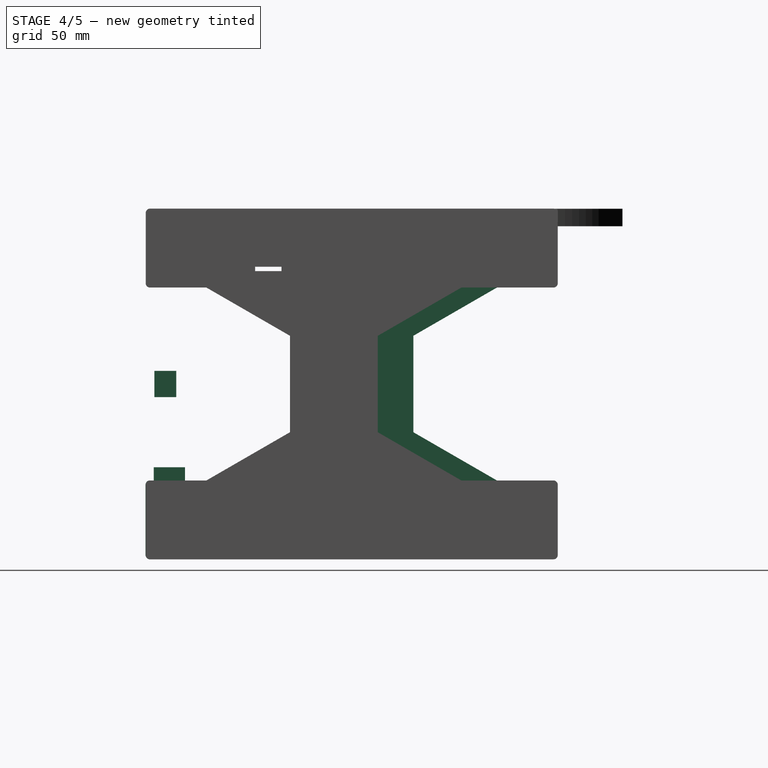
[diagram: stage 4 of 5 — right view after this stage's code; geometry added in this stage tinted green]
FEATURE [PartDesign::Body] Body001  label="A-base"
  Group = -> [Sketch001,Pad001]
  Origin = -> Origin001
  Tip = -> Pad001
FEATURE [Sketcher::SketchObject] Sketch002
  FullyConstrained = true
  MapMode = 5
  Placement = pos=(0,0,0) rot=(0.57735,0.57735,0.57735;2.0944rad)
  Support = -> [YZ_Plane002]
  expr: Constraints[52] = Spreadsheet.standDepth
  expr: Constraints[61] = Spreadsheet.standHeight
  sketch-geometry (23):
    g0: LineSegment StartX=-50 StartY=80 StartZ=0 EndX=-2 EndY=80 EndZ=0
    g1: LineSegment StartX=94 StartY=80 StartZ=0 EndX=94 EndY=44 EndZ=0
    g2: LineSegment StartX=94 StartY=-80 StartZ=0 EndX=-94 EndY=-80 EndZ=0
    g3: LineSegment StartX=94 StartY=-44 StartZ=0 EndX=66.29 EndY=-44 EndZ=0
    g4: LineSegment StartX=-50 StartY=80 StartZ=0 EndX=-50 EndY=44 EndZ=0
    g5: LineSegment StartX=-50 StartY=-44 StartZ=0 EndX=-11.8949 EndY=-22 EndZ=0
    g6: LineSegment StartX=-11.8949 StartY=-22 StartZ=0 EndX=-11.8949 EndY=22 EndZ=0
    g7: LineSegment StartX=-11.8949 StartY=22 StartZ=0 EndX=-50 EndY=44 EndZ=0
    g8: Circle CenterX=-50 CenterY=-3.46e-14 CenterZ=0 NormalX=0 NormalY=0 NormalZ=1 AngleXU=0 Radius=44
    g9: LineSegment StartX=66.29 StartY=44 StartZ=0 EndX=28.1849 EndY=22 EndZ=0
    g10: LineSegment StartX=28.1849 StartY=22 StartZ=0 EndX=28.1849 EndY=-22 EndZ=0
    g11: LineSegment StartX=28.1849 StartY=-22 StartZ=0 EndX=66.29 EndY=-44 EndZ=0
    g12: Circle CenterX=66.29 CenterY=0 CenterZ=0 NormalX=0 NormalY=0 NormalZ=1 AngleXU=0 Radius=44
    g13: LineSegment StartX=-2 StartY=80 StartZ=0 EndX=-2 EndY=64 EndZ=0
    g14: LineSegment StartX=-2 StartY=64 StartZ=0 EndX=22 EndY=51.1556 EndZ=0
    g15: LineSegment StartX=22 StartY=51.1556 StartZ=0 EndX=46 EndY=64 EndZ=0
    g16: LineSegment StartX=46 StartY=64 StartZ=0 EndX=46 EndY=80 EndZ=0
    g17: Circle CenterX=22 CenterY=80 CenterZ=0 NormalX=0 NormalY=0 NormalZ=1 AngleXU=0 Radius=28.8444
    g18: LineSegment StartX=46 StartY=80 StartZ=0 EndX=94 EndY=80 EndZ=0
    g19: LineSegment StartX=-50 StartY=-44 StartZ=0 EndX=-94 EndY=-44 EndZ=0
    g20: LineSegment StartX=66.29 StartY=44 StartZ=0 EndX=94 EndY=44 EndZ=0
    g21: LineSegment StartX=-94 StartY=-44 StartZ=0 EndX=-94 EndY=-80 EndZ=0
    g22: LineSegment StartX=94 StartY=-44 StartZ=0 EndX=94 EndY=-80 EndZ=0
  constraints (68):
    c: Coincident(g18,g1)
    c: Horizontal(g0)
    c: Vertical(g1)
    c: Horizontal(g3)
    c: PointOnObject(g3,g1)
    c: Vertical(g4)
    c: Coincident(g5,g6)
    c: Coincident(g6,g7)
    c: Equal(g5,g6)
    c: Equal(g5,g7)
    c: PointOnObject(g5,g8)
    c: PointOnObject(g6,g8)
    c: PointOnObject(g7,g8)
    c: PointOnObject(g5,g8)
    c: Coincident(g7,g4)
    c: Coincident(g9,g10)
    c: Coincident(g10,g11)
    c: PointOnObject(g9,g12)
    c: PointOnObject(g9,g12)
    c: PointOnObject(g10,g12)
    c: PointOnObject(g11,g12)
    c: PointOnObject(g12,g-1)
    c: DistanceX(g9,g11) = 0
    c: Coincident(g13,g14)
    c: Coincident(g14,g15)
    c: Coincident(g15,g16)
    c: PointOnObject(g13,g17)
    c: PointOnObject(g14,g17)
    c: PointOnObject(g15,g17)
    c: Parallel(g13,g-2)
    c: PointOnObject(g17,g0)
    c: Angle(g3,g11,g11) = 2.61799
    c: Angle(g10,g11,g10) = 1.0472
    c: DistanceX(g11,g3) = 27.71
    c: DistanceY(g18,g0) = 0
    c: Parallel(g18,g0)
    c: Symmetric(g2,g2,g-2)
    c: Coincident(g0,g4)
    c: Coincident(g3,g11)
    c: Coincident(g13,g0)
    c: Coincident(g18,g16)
    c: DistanceX(g16,g1) = 48
    c: DistanceY(g13,g13) = 16
    c: DistanceX(g0,g0) = 48
    c: Equal(g16,g13)
    c: Perpendicular(g18,g16)
    c: Equal(g15,g14)
    c: Coincident(g20,g9)
    c: Coincident(g20,g1)
    c: Horizontal(g20)
    c: DistanceY(g1,g1) = 36
    c: DistanceY(g6,g9) = 0
    c: DistanceX(g2,g2) = 188
    c: Coincident(g19,g5)
    c: Horizontal(g19)
    c: Coincident(g21,g19)
    c: Coincident(g21,g2)
    c: Vertical(g21)
    c: Coincident(g22,g3)
    c: Coincident(g22,g2)
    c: Vertical(g22)
    c: DistanceY(g2,g1) = 160
    c: Equal(g9,g10)
    c: DistanceX(g4,g5) = 0
    c: DistanceX(g0,g1) = 144
    c: DistanceY(g4,g0) = 36
    c: DistanceY(g2,g19) = 36
    c: Equal(g6,g10)
FEATURE [PartDesign::Pad] Pad002
  Direction = (1,-2e-16,3e-16)
  Length = 4
  Length2 = 10
  Placement = pos=(0,0,0) rot=(0.57735,0.57735,0.57735;2.0944rad)
  Profile = -> Sketch002
  ReferenceAxis = -> Sketch002 [N_Axis]
  Type = 0
  expr: Length = Spreadsheet.wallThickness
FEATURE [Part::Box] Box012  label="Ur-Slot-Outside005"
  AttacherType = Attacher::AttachEngine3D
  Height = 10
  Length = 18.25
  Width = 18.25
  expr: Height = Spreadsheet.tabThickness
  expr: Length = Spreadsheet.slotThickness
  expr: Width = Spreadsheet.slotThickness
FEATURE [Part::Box] Box013  label="Ur-Slot-Slot005"
  AttacherType = Attacher::AttachEngine3D
  Height = 10
  Length = 10.25
  Placement = pos=(4,4,0) rot=(0,0,1;0rad)
  Width = 10.25
  expr: Length = Spreadsheet.tabThickness + Spreadsheet.tabBufferSize
  expr: Width = Spreadsheet.tabThickness + Spreadsheet.tabBufferSize
FEATURE [Part::Cut] Cut006  label="k-slot-1"
  Base = -> Box012
  Placement = pos=(-122.5,0,-80) rot=(0,0,1;0rad)
  Tool = -> Box013
FEATURE [Part::Box] Box022  label="Ur-Tab-Tab002"
  AttacherType = Attacher::AttachEngine3D
  Height = 6
  Length = 10
  Placement = pos=(0,0,-6) rot=(0,0,1;0rad)
  Width = 10
  expr: Height = Spreadsheet.tabHeight
  expr: Length = Spreadsheet.tabThickness
  expr: Width = Spreadsheet.tabThickness
FEATURE [Part::Box] Box023  label="Ur-Tab-Support002"
  AttacherType = Attacher::AttachEngine3D
  Height = 6
  Length = 14.25
  Width = 10
  expr: Height = Spreadsheet.tabSupportHeight
  expr: Length = Spreadsheet.tabThickness + Spreadsheet.wallThickness + Spreadsheet.tabBufferSize
  expr: Width = Spreadsheet.tabThickness
FEATURE [Part::Box] Box024  label="Ur-Tab-Tab003"
  AttacherType = Attacher::AttachEngine3D
  Height = 6
  Length = 10
  Placement = pos=(0,0,-6) rot=(0,0,1;0rad)
  Width = 10
  expr: Height = Spreadsheet.tabHeight
  expr: Length = Spreadsheet.tabThickness
  expr: Width = Spreadsheet.tabThickness
FEATURE [Part::Box] Box025  label="Ur-Tab-Support003"
  AttacherType = Attacher::AttachEngine3D
  Height = 6
  Length = 14.25
  Width = 10
  expr: Height = Spreadsheet.tabSupportHeight
  expr: Length = Spreadsheet.tabThickness + Spreadsheet.wallThickness + Spreadsheet.tabBufferSize
  expr: Width = Spreadsheet.tabThickness
FEATURE [Part::MultiFuse] Fusion005  label="A-tab-3"
  Placement = pos=(-118.5,14,-44) rot=(0,0,-1;1.5708rad)
  Shapes = -> [Box024,Box025]
FEATURE [Part::Box] Box026  label="Ur-Tab-Tab004"
  AttacherType = Attacher::AttachEngine3D
  Height = 6
  Length = 10
  Placement = pos=(0,0,-6) rot=(0,0,1;0rad)
  Width = 10
  expr: Height = Spreadsheet.tabHeight
  expr: Length = Spreadsheet.tabThickness
  expr: Width = Spreadsheet.tabThickness
FEATURE [Part::Box] Box027  label="Ur-Tab-Support004"
  AttacherType = Attacher::AttachEngine3D
  Height = 6
  Length = 14.25
  Width = 10
  expr: Height = Spreadsheet.tabSupportHeight
  expr: Length = Spreadsheet.tabThickness + Spreadsheet.wallThickness + Spreadsheet.tabBufferSize
  expr: Width = Spreadsheet.tabThickness
FEATURE [Part::MultiFuse] Fusion006  label="A-tab-4"
  Placement = pos=(-118.5,14,-70) rot=(0,0,-1;1.5708rad)
  Shapes = -> [Box026,Box027]
FEATURE [Part::MultiFuse] Fusion002  label="k"
  Shapes = -> [Body002,Cut006,Cut007,Cut008,Cut009,Box033]
FEATURE [Part::Fillet] Fillet008  label="k-smoothed"
  Base = -> Fusion002
  Edges = 14 edges r=2: [Edge6,Edge68,Edge70,Edge71,Edge72,Edge76,Edge77,Edge78,Edge83,Edge84,Edge144,Edge146,Edge148,Edge149]
FEATURE [Part::Cut] Cut011  label="K with strap cut"
  Base = -> Fillet008
  Tool = -> Box036
FEATURE [Part::Fillet] Fillet013  label="k-reinforced"
  Base = -> Cut011
  Edges = 8 edges r=2: [Edge50,Edge52,Edge67,Edge69,Edge79,Edge81,Edge83,Edge84]
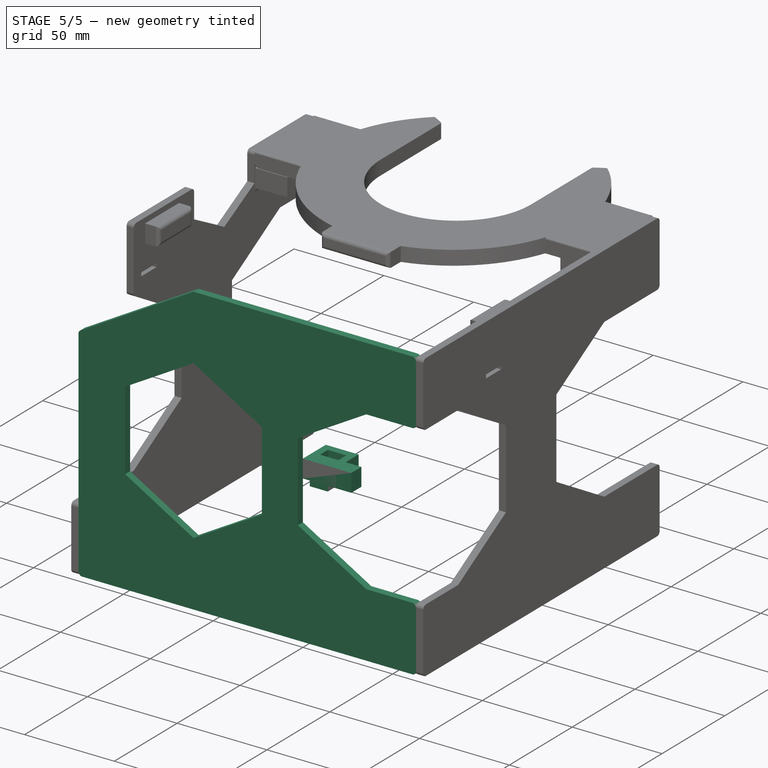
[diagram: stage 5 of 5 — iso view after this stage's code; geometry added in this stage tinted green]
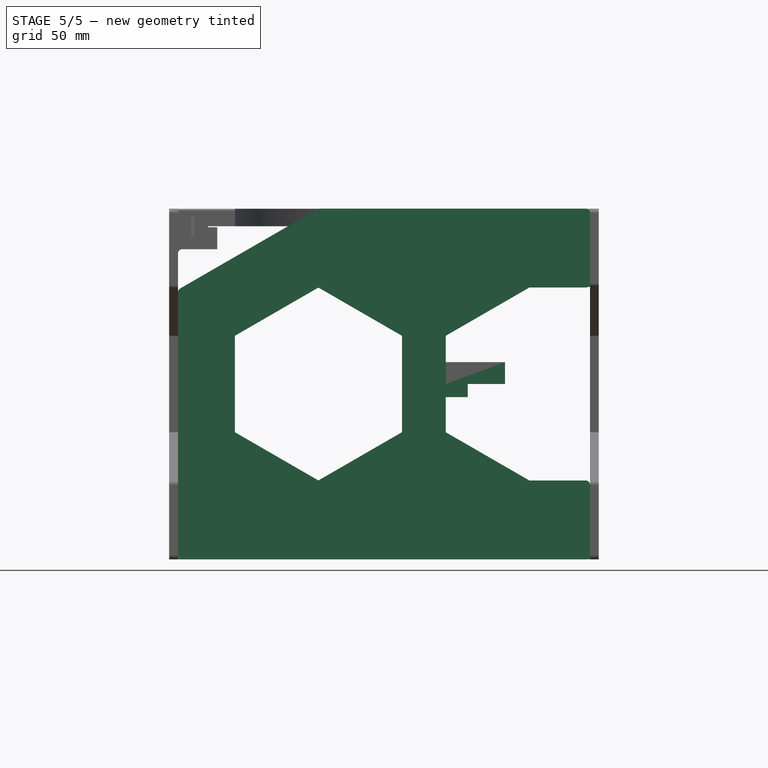
[diagram: stage 5 of 5 — front view after this stage's code; geometry added in this stage tinted green]
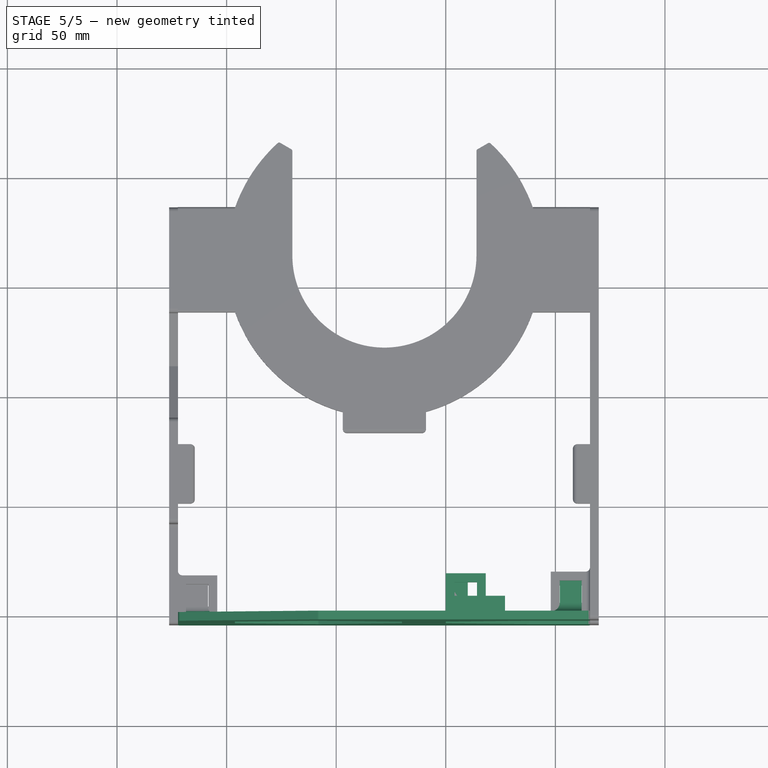
[diagram: stage 5 of 5 — top view after this stage's code; geometry added in this stage tinted green]
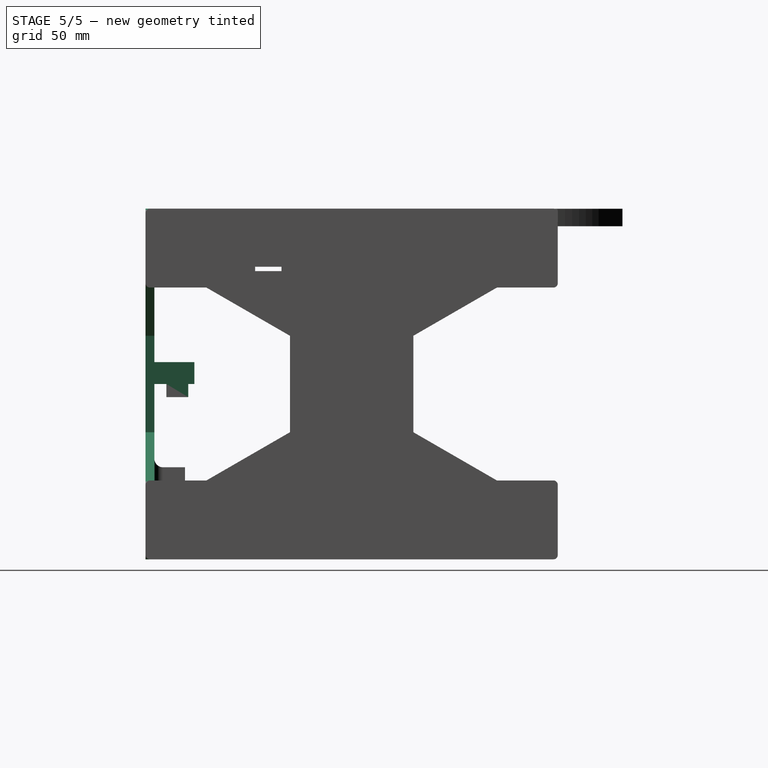
[diagram: stage 5 of 5 — right view after this stage's code; geometry added in this stage tinted green]
FEATURE [PartDesign::Body] Body  label="H-base"
  Group = -> [Sketch,Pad]
  Origin = -> Origin
  Placement = pos=(65.8193,90.0644,1.9e-14) rot=(0.57735,0.57735,-0.57735;2.0944rad)
  Tip = -> Pad
FEATURE [Sketcher::SketchObject] Sketch001
  FullyConstrained = true
  MapMode = 2
  Placement = pos=(0,0,0) rot=(1,0,0;1.5708rad)
  Support = -> [XZ_Plane001]
  sketch-geometry (19):
    g0: LineSegment StartX=65.8151 StartY=80 StartZ=0 EndX=65.8151 EndY=44 EndZ=0
    g1: LineSegment StartX=65.8151 StartY=-80 StartZ=0 EndX=-122.185 EndY=-80 EndZ=0
    g2: LineSegment StartX=65.8151 StartY=-44 StartZ=0 EndX=38.1051 EndY=-44 EndZ=0
    g3: LineSegment StartX=-58.1051 StartY=80 StartZ=0 EndX=-122.185 EndY=43.0035 EndZ=0
    g4: LineSegment StartX=38.1051 StartY=44 StartZ=0 EndX=-7.1e-15 EndY=22 EndZ=0
    g5: LineSegment StartX=-7.1e-15 StartY=22 StartZ=0 EndX=5.1e-15 EndY=-22 EndZ=0
    g6: LineSegment StartX=5.1e-15 StartY=-22 StartZ=0 EndX=38.1051 EndY=-44 EndZ=0
    g7: Circle CenterX=38.1051 CenterY=0 CenterZ=0 NormalX=0 NormalY=0 NormalZ=1 AngleXU=0 Radius=44
    g8: LineSegment StartX=-58.1051 StartY=80 StartZ=0 EndX=65.8151 EndY=80 EndZ=0
    g9: LineSegment StartX=38.1051 StartY=44 StartZ=0 EndX=65.8151 EndY=44 EndZ=0
    g10: LineSegment StartX=-122.185 StartY=43.0035 StartZ=0 EndX=-122.185 EndY=-80 EndZ=0
    g11: LineSegment StartX=65.8151 StartY=-44 StartZ=0 EndX=65.8151 EndY=-80 EndZ=0
    g12: LineSegment StartX=-58.1051 StartY=44 StartZ=0 EndX=-96.2102 EndY=22 EndZ=0
    g13: LineSegment StartX=-96.2102 StartY=22 StartZ=0 EndX=-96.2102 EndY=-22 EndZ=0
    g14: LineSegment StartX=-96.2102 StartY=-22 StartZ=0 EndX=-58.1051 EndY=-44 EndZ=0
    g15: LineSegment StartX=-58.1051 StartY=-44 StartZ=0 EndX=-20 EndY=-22 EndZ=0
    g16: LineSegment StartX=-20 StartY=-22 StartZ=0 EndX=-20 EndY=22 EndZ=0
    g17: LineSegment StartX=-20 StartY=22 StartZ=0 EndX=-58.1051 EndY=44 EndZ=0
    g18: Circle CenterX=-58.1051 CenterY=0 CenterZ=0 NormalX=0 NormalY=0 NormalZ=1 AngleXU=0 Radius=44
  constraints (53):
    c: Horizontal(g2)
    c: Coincident(g4,g5)
    c: Coincident(g5,g6)
    c: PointOnObject(g4,g7)
    c: PointOnObject(g4,g7)
    c: PointOnObject(g5,g7)
    c: PointOnObject(g6,g7)
    c: PointOnObject(g7,g-1)
    c: DistanceX(g4,g6) = 0
    c: Angle(g2,g6,g6) = 2.61799
    c: Angle(g5,g6,g5) = 1.0472
    c: DistanceX(g6,g2) = 27.71
    c: DistanceY(g2,g0) = 88
    c: Coincident(g2,g6)
    c: Coincident(g9,g4)
    c: Coincident(g9,g0)
    c: Horizontal(g9)
    c: Coincident(g10,g1)
    c: Vertical(g10)
    c: Coincident(g10,g3)
    c: Coincident(g12,g13)
    c: Coincident(g13,g14)
    c: Coincident(g14,g15)
    c: Coincident(g15,g16)
    c: Coincident(g16,g17)
    c: Coincident(g17,g12)
    c: Equal(g12, g13-g17) x5
    c: PointOnObject(g12,g18)
    c: PointOnObject(g13,g18)
    c: PointOnObject(g14,g18)
    c: PointOnObject(g15,g18)
    c: PointOnObject(g16,g18)
    c: PointOnObject(g17,g18)
    c: PointOnObject(g18,g-1)
    c: Distance(g12,g14) = 88
    c: Parallel(g16,g5)
    c: Equal(g6,g5)
    c: Parallel(g3,g12)
    c: Coincident(g8,g3)
    c: Horizontal(g1)
    c: DistanceY(g1,g0) = 160
    c: Distance(g1) = 188
    c: Coincident(g1,g11)
    c: Vertical(g11)
    c: Coincident(g2,g11)
    c: Coincident(g0,g8)
    c: Horizontal(g8)
    c: Equal(g2,g9)
    c: Vertical(g0)
    c: Equal(g0,g11)
    c: DistanceX(g16,g4) = 20
    c: PointOnObject(g-1,g5)
    c: DistanceX(g12,g3) = 0
FEATURE [PartDesign::Pad] Pad001
  Direction = (0,-1,-2e-16)
  Length = 4
  Length2 = 10
  Placement = pos=(0,0,0) rot=(1,0,0;1.5708rad)
  Profile = -> Sketch001
  ReferenceAxis = -> Sketch001 [N_Axis]
  Type = 0
  expr: Length = Spreadsheet.wallThickness
FEATURE [Part::Box] Box  label="Ur-Tab-Tab"
  AttacherType = Attacher::AttachEngine3D
  Height = 6
  Length = 10
  Placement = pos=(0,0,-6) rot=(0,0,1;0rad)
  Width = 10
  expr: Height = Spreadsheet.tabHeight
  expr: Length = Spreadsheet.tabThickness
  expr: Width = Spreadsheet.tabThickness
FEATURE [Part::Box] Box001  label="Ur-Tab-Support"
  AttacherType = Attacher::AttachEngine3D
  Height = 6
  Length = 14.25
  Width = 10
  expr: Height = Spreadsheet.tabSupportHeight
  expr: Length = Spreadsheet.tabThickness + Spreadsheet.wallThickness + Spreadsheet.tabBufferSize
  expr: Width = Spreadsheet.tabThickness
FEATURE [Part::MultiFuse] Fusion  label="Ur-Tab"
  Placement = pos=(3e-15,15.5,0) rot=(0,0,-1;1.5708rad)
  Shapes = -> [Box,Box001]
FEATURE [Part::Box] Box002  label="Ur-Slot-Outside"
  AttacherType = Attacher::AttachEngine3D
  Height = 10
  Length = 18.25
  Width = 18.25
  expr: Height = Spreadsheet.tabThickness
  expr: Length = Spreadsheet.slotThickness
  expr: Width = Spreadsheet.slotThickness
FEATURE [Part::Box] Box003  label="Ur-Slot-Slot"
  AttacherType = Attacher::AttachEngine3D
  Height = 10
  Length = 10.25
  Placement = pos=(4,4,0) rot=(0,0,1;0rad)
  Width = 10.25
  expr: Length = Spreadsheet.tabThickness + Spreadsheet.tabBufferSize
  expr: Width = Spreadsheet.tabThickness + Spreadsheet.tabBufferSize
FEATURE [Part::Cut] Cut001  label="Ur-Slot"
  Base = -> Box002
  Tool = -> Box003
FEATURE [Part::Box] Box020  label="Ur-Tab-Tab001"
  AttacherType = Attacher::AttachEngine3D
  Height = 6
  Length = 10
  Placement = pos=(0,0,-6) rot=(0,0,1;0rad)
  Width = 10
  expr: Height = Spreadsheet.tabHeight
  expr: Length = Spreadsheet.tabThickness
  expr: Width = Spreadsheet.tabThickness
FEATURE [Part::Box] Box021  label="Ur-Tab-Support001"
  AttacherType = Attacher::AttachEngine3D
  Height = 6
  Length = 14.25
  Width = 10
  expr: Height = Spreadsheet.tabSupportHeight
  expr: Length = Spreadsheet.tabThickness + Spreadsheet.wallThickness + Spreadsheet.tabBufferSize
  expr: Width = Spreadsheet.tabThickness
FEATURE [Part::MultiFuse] Fusion003  label="A-tab-1"
  Placement = pos=(52,14,54.5) rot=(0,0,-1;1.5708rad)
  Shapes = -> [Box020,Box021]
FEATURE [Part::MultiFuse] Fusion004  label="A-tab-2"
  Placement = pos=(52,14,-70) rot=(0,0,-1;1.5708rad)
  Shapes = -> [Box022,Box023]
FEATURE [Part::MultiFuse] Fusion007  label="A"
  Shapes = -> [Fusion003,Fusion004,Fusion005,Fusion006,Body001]
FEATURE [Part::Box] Box032  label="Ur-PumpBoxSupport"
  AttacherType = Attacher::AttachEngine3D
  Height = 10
  Length = 27
  Width = 8
  expr: Height = Spreadsheet.pumpBoxSupportHeight
  expr: Length = Spreadsheet.pumpBoxSupportDepth
  expr: Width = Spreadsheet.pumpBoxSupportWidth
FEATURE [Part::Fillet] Fillet009  label="A-smoothed"
  Base = -> Fusion007
  Edges = 23 edges r=2: [Edge1,Edge2,Edge5,Edge8,Edge55,Edge57,Edge59,Edge108,Edge112,Edge115,Edge116,Edge120,Edge123,Edge124,Edge128,Edge131,Edge132,Edge136,Edge139,Edge140,Edge141,Edge142,Edge143]
FEATURE [Part::Fillet] Fillet012  label="A-reinforced-tabs"
  Base = -> Fillet009
  Edges = 8 edges: [Edge23 r=4,Edge24 r=1,Edge27 r=4,Edge28 r=4,Edge36 r=4,Edge37 r=4,Edge40 r=4,Edge41 r=4]
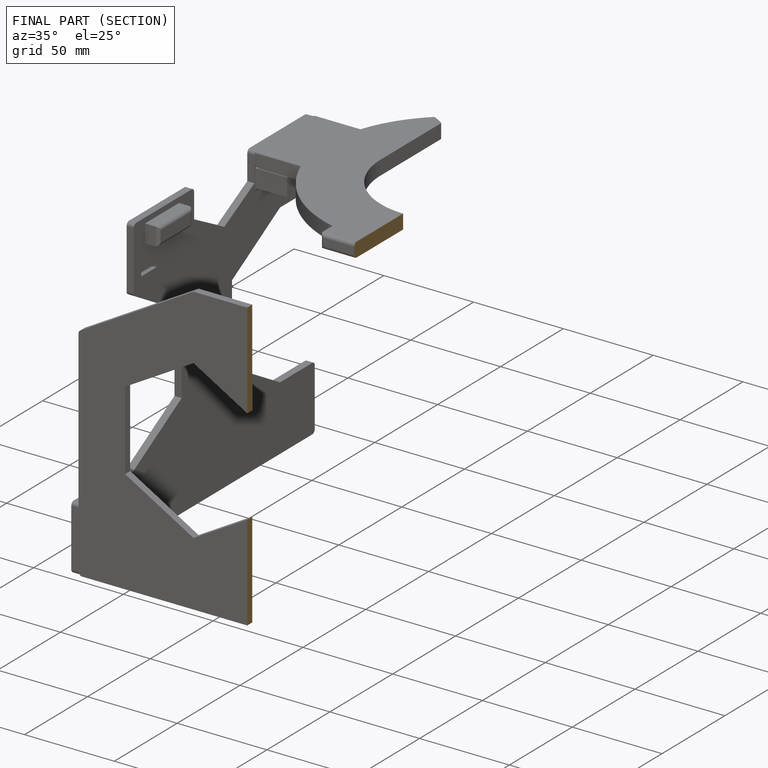
[diagram: finished part — half-section view (interior)]
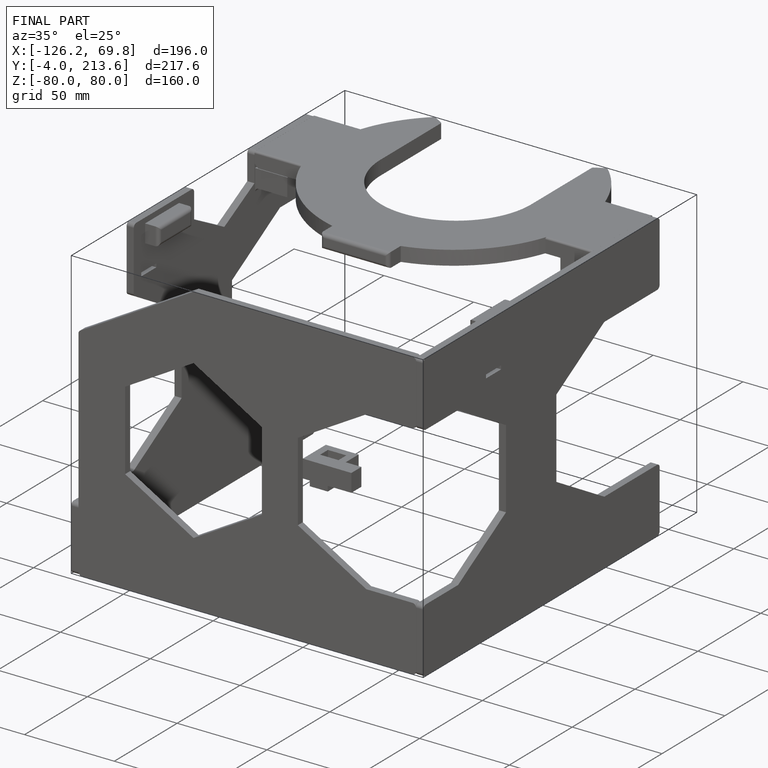
[diagram: finished part — iso view with bounding-box wireframe]
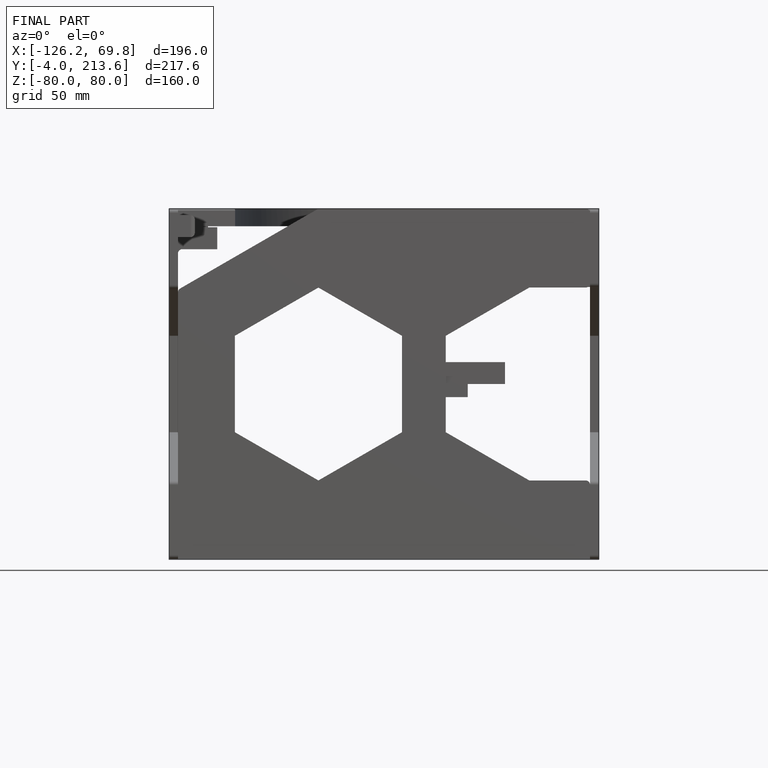
[diagram: finished part — front view with bounding-box wireframe]
